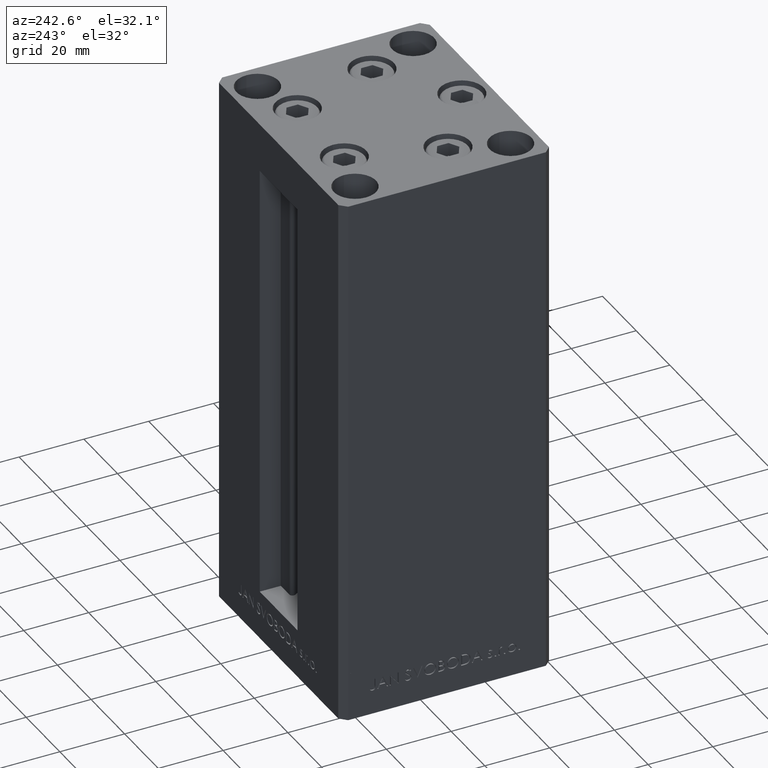
[diagram: clean part render]
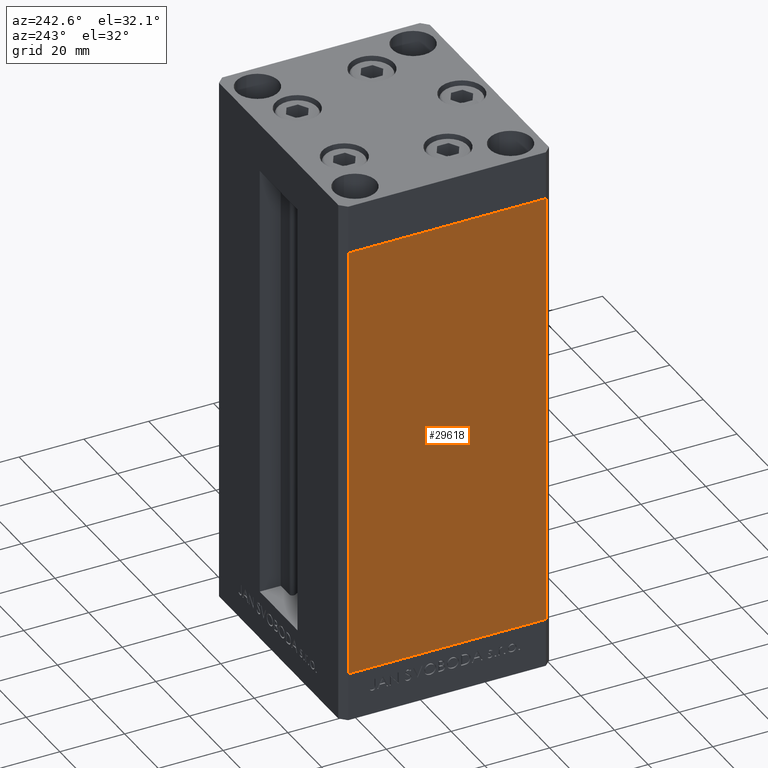
[diagram: same view with one face highlighted and labeled with its STEP entity id]
A machine part, auxiliary view. The second image highlights one B-rep face of the part: STEP entity #29618.
In plain terms, the highlighted planar face has unit normal (1, 0, 0).
Its self-contained STEP definition (entity closure, byte-faithful):
#596 = ORIENTED_EDGE ( 'NONE', *, *, #47569, .F. ) ;
#1009 = EDGE_CURVE ( 'NONE', #29849, #37616, #38180, .T. ) ;
#2255 = CARTESIAN_POINT ( 'NONE',  ( -37.49999999999999289, -30.50000000000000000, 0.000000000000000000 ) ) ;
#3273 = VERTEX_POINT ( 'NONE', #2255 ) ;
#3730 = CARTESIAN_POINT ( 'NONE',  ( -37.50000000000000711, 30.50000000000000000, 136.0000000000000000 ) ) ;
#4449 = LINE ( 'NONE', #38667, #24448 ) ;
#4830 = EDGE_CURVE ( 'NONE', #42636, #3273, #47924, .T. ) ;
#8565 = CARTESIAN_POINT ( 'NONE',  ( -37.50000000000000711, 30.50000000000000000, 136.0000000000000000 ) ) ;
#11571 = VECTOR ( 'NONE', #33767, 1000.000000000000000 ) ;
#12539 = VECTOR ( 'NONE', #36432, 1000.000000000000000 ) ;
#15113 = CARTESIAN_POINT ( 'NONE',  ( -37.50000000000000711, 30.50000000000000000, 0.000000000000000000 ) ) ;
#18370 = DIRECTION ( 'NONE',  ( -0.000000000000000000, -0.000000000000000000, -1.000000000000000000 ) ) ;
#19229 = DIRECTION ( 'NONE',  ( 2.275047181608927644E-16, -1.000000000000000000, 0.000000000000000000 ) ) ;
#21015 = EDGE_LOOP ( 'NONE', ( #36828, #36469, #596, #42928 ) ) ;
#21412 = LINE ( 'NONE', #24631, #12539 ) ;
#24138 = VECTOR ( 'NONE', #18370, 1000.000000000000000 ) ;
#24448 = VECTOR ( 'NONE', #19229, 1000.000000000000000 ) ;
#24631 = CARTESIAN_POINT ( 'NONE',  ( -37.50000000000000711, 30.50000000000000000, 136.0000000000000000 ) ) ;
#28305 = CARTESIAN_POINT ( 'NONE',  ( -37.50000000000000711, 30.50000000000000000, 136.0000000000000000 ) ) ;
#29618 = ADVANCED_FACE ( 'NONE', ( #36654 ), #39857, .F. ) ;
#29849 = VERTEX_POINT ( 'NONE', #8565 ) ;
#32239 = DIRECTION ( 'NONE',  ( -2.275047181608927644E-16, 1.000000000000000000, 0.000000000000000000 ) ) ;
#33767 = DIRECTION ( 'NONE',  ( -0.000000000000000000, -0.000000000000000000, -1.000000000000000000 ) ) ;
#36432 = DIRECTION ( 'NONE',  ( 2.275047181608927644E-16, -1.000000000000000000, 0.000000000000000000 ) ) ;
#36469 = ORIENTED_EDGE ( 'NONE', *, *, #4830, .F. ) ;
#36654 = FACE_OUTER_BOUND ( 'NONE', #21015, .T. ) ;
#36828 = ORIENTED_EDGE ( 'NONE', *, *, #46632, .T. ) ;
#37092 = CARTESIAN_POINT ( 'NONE',  ( -37.49999999999999289, -30.50000000000000000, 136.0000000000000000 ) ) ;
#37421 = AXIS2_PLACEMENT_3D ( 'NONE', #28305, #43313, #32239 ) ;
#37616 = VERTEX_POINT ( 'NONE', #15113 ) ;
#38180 = LINE ( 'NONE', #3730, #11571 ) ;
#38667 = CARTESIAN_POINT ( 'NONE',  ( -37.50000000000000711, 30.50000000000000000, 0.000000000000000000 ) ) ;
#39857 = PLANE ( 'NONE',  #37421 ) ;
#42179 = CARTESIAN_POINT ( 'NONE',  ( -37.49999999999999289, -30.50000000000000000, 136.0000000000000000 ) ) ;
#42636 = VERTEX_POINT ( 'NONE', #42179 ) ;
#42928 = ORIENTED_EDGE ( 'NONE', *, *, #1009, .T. ) ;
#43313 = DIRECTION ( 'NONE',  ( 1.000000000000000000, 2.275047181608927644E-16, -0.000000000000000000 ) ) ;
#46632 = EDGE_CURVE ( 'NONE', #37616, #3273, #4449, .T. ) ;
#47569 = EDGE_CURVE ( 'NONE', #29849, #42636, #21412, .T. ) ;
#47924 = LINE ( 'NONE', #37092, #24138 ) ;